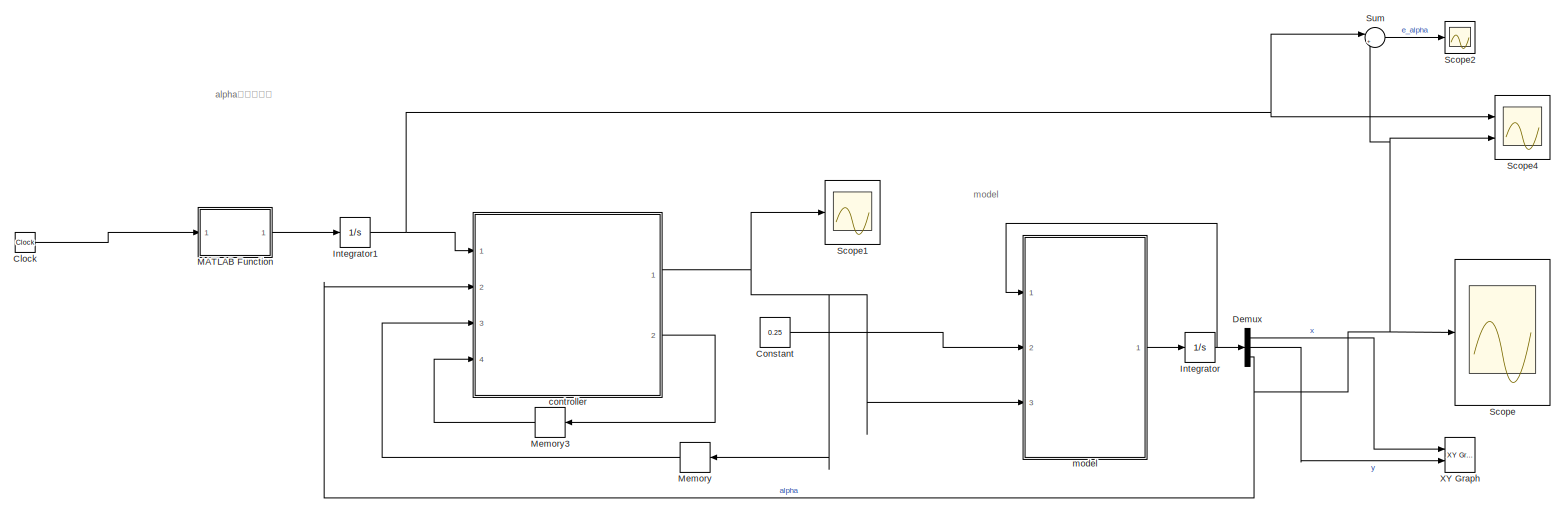
[diagram: root canvas - part 1/1, most of the canvas]
MODEL slx_767abf6426f4
KIND model
CONFIG AbsTol = auto
CONFIG EnableMultiTasking = off
CONFIG FixedStep = 0.05
CONFIG MaxStep = 0.05
CONFIG MinStep = auto
CONFIG RelTol = 1e-3
CONFIG SampleTimeConstraint = Unconstrained
CONFIG Solver = ode5
CONFIG SolverName = ode5
CONFIG StartTime = 0.0
CONFIG StopTime = 30
BLOCK [Clock] Clock
BLOCK [Constant] Constant
  Value = 0.25
BLOCK [Demux] Demux
  DisplayOption = bar
  Outputs = 3
  Ports = [1, 3]
BLOCK [Integrator] Integrator
  IgnoreLimit = on
  InitialCondition = [0 0 -pi/2]
  Ports = [1, 1]
BLOCK [Integrator] Integrator1
  InitialCondition = pi/2
  Ports = [1, 1]
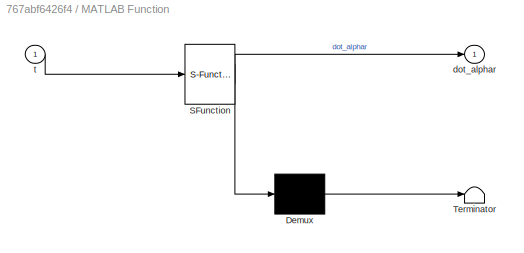
BLOCK [SubSystem] MATLAB Function
  ErrorFcn = Stateflow.Translate.translate
  PermitHierarchicalResolution = ExplicitOnly
  Ports = [1, 1]
  RequestExecContextInheritance = off
  SFBlockType = MATLAB Function
  TreatAsAtomicUnit = on
  Variant = off
BLOCK [Demux] MATLAB Function/ Demux 
  Outputs = 1
  Ports = [1, 1]
BLOCK [S-Function] MATLAB Function/ SFunction 
  EnableBusSupport = on
  FunctionName = sf_sfun
  PortCounts = [1 2]
  Ports = [1, 2]
  SFcnIsStateOwnerBlock = off
  SFunctionDeploymentMode = off
  Tag = Stateflow S-Function Copy_of_PID_2 3
BLOCK [Terminator] MATLAB Function/ Terminator 
BLOCK [Outport] MATLAB Function/dot_alphar
  IconDisplay = Port number
BLOCK [Inport] MATLAB Function/t
  IconDisplay = Port number
BLOCK [Memory] Memory
BLOCK [Memory] Memory3
  X0 = [0 0]
BLOCK [Scope] Scope
  NumInputPorts = 1
  Ports = [1]
  ScopeSpecificationString = Simulink.scopes.TimeScopeBlockCfg('CurrentConfiguration', extmgr.ConfigurationSet(extmgr.Configuration('Core','General UI',true),extmgr.Configuration('Core','Source UI',true),extmgr.Configuration('Sources','WiredSimulink',true,'DataLoggingVariableName','ScopeData1'),extmgr.Configuration('Visuals','Time Domain',true,'SerializedDisplays',{struct('MinYLimReal','-5.7135','MaxYLimReal','35.7135','YLabe...<+1567ch>
BLOCK [Scope] Scope1
  NumInputPorts = 1
  Ports = [1]
  ScopeSpecificationString = Simulink.scopes.TimeScopeBlockCfg('CurrentConfiguration', extmgr.ConfigurationSet(extmgr.Configuration('Core','General UI',true),extmgr.Configuration('Core','Source UI',true),extmgr.Configuration('Sources','WiredSimulink',true,'DataLoggingVariableName','ScopeData1'),extmgr.Configuration('Visuals','Time Domain',true,'SerializedDisplays',{struct('MinYLimReal','-1.74543','MaxYLimReal','13.81012','YLa...<+1514ch>
BLOCK [Scope] Scope2
  NumInputPorts = 1
  Ports = [1]
  ScopeSpecificationString = Simulink.scopes.TimeScopeBlockCfg('CurrentConfiguration', extmgr.ConfigurationSet(extmgr.Configuration('Core','General UI',true),extmgr.Configuration('Core','Source UI',true),extmgr.Configuration('Sources','WiredSimulink',true,'DataLoggingVariableName','ScopeData2'),extmgr.Configuration('Visuals','Time Domain',true,'SerializedDisplays',{struct('MinYLimReal','-1.59685','MaxYLimReal','3.66809','YLab...<+1473ch>
BLOCK [Scope] Scope4
  NumInputPorts = 2
  Ports = [2]
  ScopeSpecificationString = Simulink.scopes.TimeScopeBlockCfg('CurrentConfiguration', extmgr.ConfigurationSet(extmgr.Configuration('Core','General UI',true),extmgr.Configuration('Core','Source UI',true),extmgr.Configuration('Sources','WiredSimulink',true,'DataLoggingVariableName','ScopeData1'),extmgr.Configuration('Visuals','Time Domain',true,'SerializedDisplays',{struct('MinYLimReal','0.2557','MaxYLimReal','2.30072','YLabel...<+1547ch>
BLOCK [Sum] Sum
  IconShape = round
  InputSameDT = off
  Inputs = |+-
  OutDataTypeStr = Inherit: Inherit via internal rule
  Ports = [2, 1]
  SaturateOnIntegerOverflow = off
BLOCK [Reference] XY Graph  REF=simulink/Sinks/XY Graph
  Ports = [2]
  SourceBlock = simulink/Sinks/XY Graph
  SourceProductBaseCode = SL
  SourceProductName = Simulink
  SourceType = XY scope.
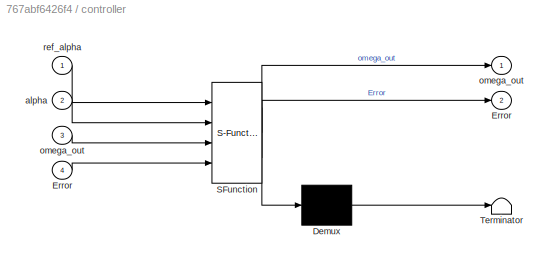
BLOCK [SubSystem] controller
  ErrorFcn = Stateflow.Translate.translate
  PermitHierarchicalResolution = ExplicitOnly
  Ports = [4, 2]
  RequestExecContextInheritance = off
  SFBlockType = MATLAB Function
  TreatAsAtomicUnit = on
  Variant = off
BLOCK [Demux] controller/ Demux 
  Outputs = 1
  Ports = [1, 1]
BLOCK [S-Function] controller/ SFunction 
  EnableBusSupport = on
  FunctionName = sf_sfun
  PortCounts = [4 3]
  Ports = [4, 3]
  SFcnIsStateOwnerBlock = off
  SFunctionDeploymentMode = off
  Tag = Stateflow S-Function Copy_of_PID_2 1
BLOCK [Terminator] controller/ Terminator 
BLOCK [Outport] controller/Error
  IconDisplay = Port number
  Port = 2
BLOCK [Inport] controller/Error 
  IconDisplay = Port number
  Port = 4
BLOCK [Inport] controller/alpha
  IconDisplay = Port number
  Port = 2
BLOCK [Outport] controller/omega_out
  IconDisplay = Port number
BLOCK [Inport] controller/omega_out 
  IconDisplay = Port number
  Port = 3
BLOCK [Inport] controller/ref_alpha
  IconDisplay = Port number
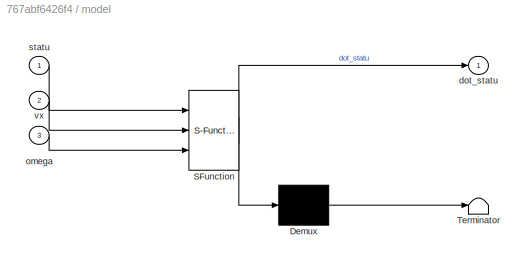
BLOCK [SubSystem] model
  ErrorFcn = Stateflow.Translate.translate
  PermitHierarchicalResolution = ExplicitOnly
  Ports = [3, 1]
  RequestExecContextInheritance = off
  SFBlockType = MATLAB Function
  TreatAsAtomicUnit = on
  Variant = off
BLOCK [Demux] model/ Demux 
  Outputs = 1
  Ports = [1, 1]
BLOCK [S-Function] model/ SFunction 
  EnableBusSupport = on
  FunctionName = sf_sfun
  PortCounts = [3 2]
  Ports = [3, 2]
  SFcnIsStateOwnerBlock = off
  SFunctionDeploymentMode = off
  Tag = Stateflow S-Function Copy_of_PID_2 2
BLOCK [Terminator] model/ Terminator 
BLOCK [Outport] model/dot_statu
  IconDisplay = Port number
BLOCK [Inport] model/omega
  IconDisplay = Port number
  Port = 3
BLOCK [Inport] model/statu
  IconDisplay = Port number
BLOCK [Inport] model/vx
  IconDisplay = Port number
  Port = 2
ANNOTATION (root): alpha角的控制器
ANNOTATION (root): model
LINE Clock:1 -> MATLAB Function:1
LINE Constant:1 -> model:2
LINE Demux:1 -> XY Graph:1
LINE Demux:2 -> XY Graph:2
NET Demux:3 -> Scope4:2, Scope:1, Sum:2, controller:2
NET Integrator1:1 -> Scope4:1, Sum:1, controller:1
NET Integrator:1 -> Demux:1, model:1
LINE MATLAB Function:1 -> Integrator1:1
LINE Memory3:1 -> controller:4
LINE Memory:1 -> controller:3
LINE Sum:1 -> Scope2:1
NET controller:1 -> Memory:1, Scope1:1, model:3
LINE controller:2 -> Memory3:1
LINE model:1 -> Integrator:1
note: NET lines group one-source signal fan-out (src -> all destinations, sorted); 1:1 wires keep LINE
CHART controller states=1 transitions=1
  STATE_LABEL 'eML_blk_kernel()'
  STATE_LABEL 'SCRIPT:\nfunction [omega_out,Error] = my_alpha_controller( ref_alpha, alpha, omega_out,Error)\n% 程序上没有问题，在运动学模型上是可以完成任务的\n% 最近修改时间：11. 20\n% 基于运动学模型的   控制器\n% u_out=[vx ;  omega]\n% ref_vel=[xr yr alphar vr omegar]\n% % e = [ex ey ealpha]\n% \n% \n\n%% 状态量                                                                           \nalpha = alpha;   alphar=ref_alpha;\n\ne2k=alphar-alpha;\n\ne2k_1=Error(1);\ne2k_2=Er...<+1417ch>'
CHART model states=1 transitions=1
  STATE_LABEL 'eML_blk_kernel()'
  STATE_LABEL 'SCRIPT:\nfunction dot_statu  = model(statu,vx,omega)\n\nx = statu(1);\ny = statu(2);\nalpha = statu(3);\n\n\ndot_alpha = omega;\ndot_x = vx*cos(alpha);\ndot_y = vx*sin(alpha);\n\n\n% 状态【x y alpha vx vy omega】\ndot_statu = [dot_x,dot_y,dot_alpha];\n\nend\n\n% max=1/wheel_radius;\n% for i=1:size(wheel_omega,2)\n%     if wheel_omega(i)>max\n%         wheel_omega(i) = max;\n%     else\n%         if wheel_omega(i)<-max\n%    ...<+124ch>'
CHART MATLAB Function states=1 transitions=1
  STATE_LABEL 'eML_blk_kernel()'
  STATE_LABEL 'SCRIPT:\nfunction dot_alphar = fcn(t)\n% alphar=pi/2;\n\nomegar=sin(2*t);\ndot_alphar=omegar;\n\nend'
